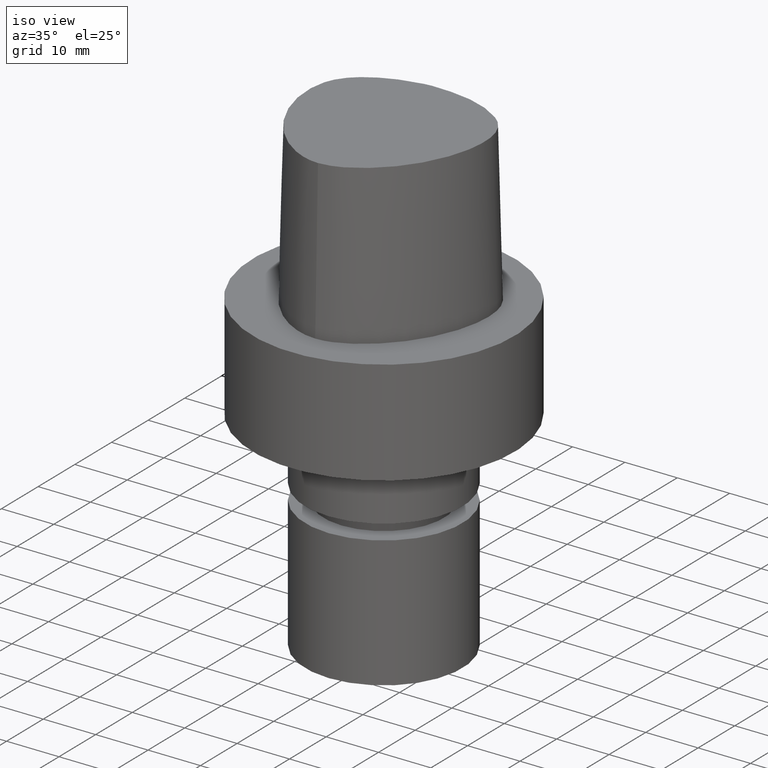
[diagram: clean part render]
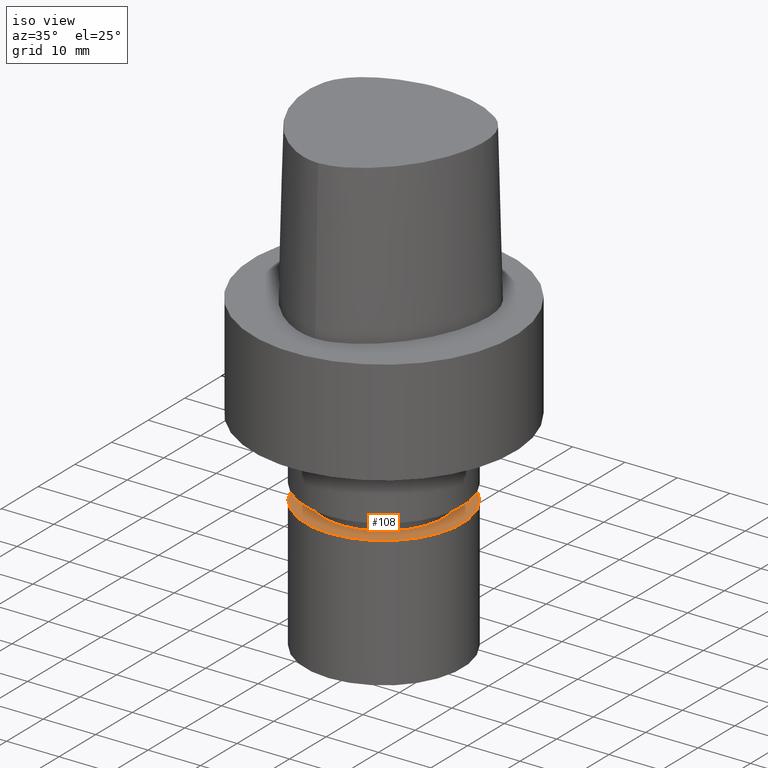
[diagram: same view with one face highlighted and labeled with its STEP entity id]
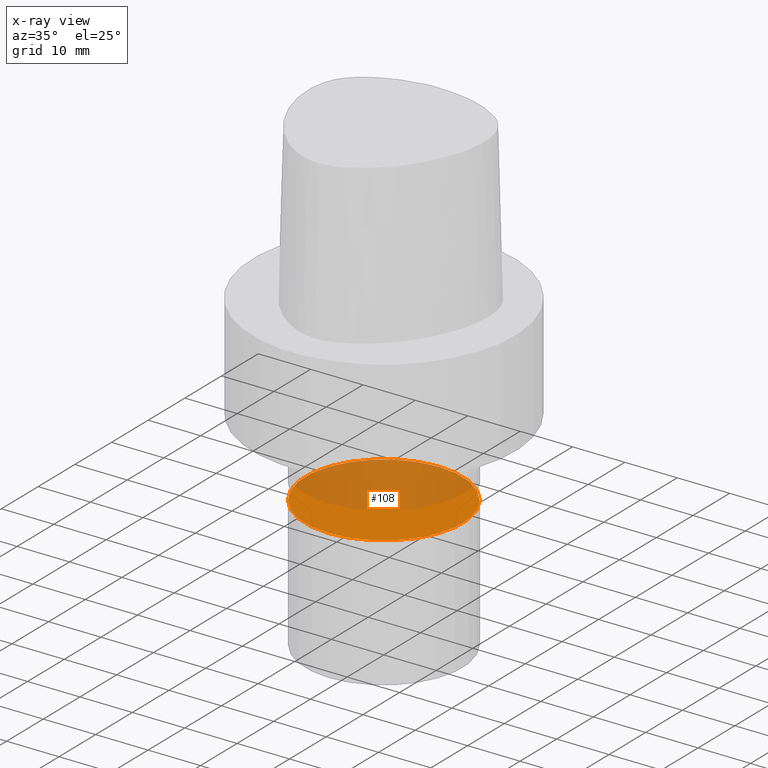
[diagram: x-ray of the same camera — body ghosted, the highlighted face saturated]
A machine part, iso view. The second image highlights one B-rep face of the part: STEP entity #108.
The next image is the same camera in x-ray: the body ghosted, the highlighted face saturated — about 55% of this face is hidden behind the body in this view.
In plain terms, the highlighted planar face has unit normal (-0, -0, 1).
Its self-contained STEP definition (entity closure, byte-faithful):
#108=ADVANCED_FACE('Unnamed[1]',(#230),#231,.T.);
#137=EDGE_CURVE('Unnamed[1]',#273,#273,#274,.T.);
#230=FACE_OUTER_BOUND('',#817,.T.);
#231=PLANE('',#818);
#273=VERTEX_POINT('',#921);
#274=CIRCLE('',#922,15.0000000000001);
#817=EDGE_LOOP('',(#1005));
#818=AXIS2_PLACEMENT_3D('',#1006,#1007,#1008);
#921=CARTESIAN_POINT('',(2.14313189850787E-015,15.0000000000001,-35.0));
#922=AXIS2_PLACEMENT_3D('',#1051,#1052,#1053);
#1005=ORIENTED_EDGE('',*,*,#137,.F.);
#1006=CARTESIAN_POINT('',(2.14313189850787E-015,7.50000000000003,-35.0));
#1007=DIRECTION('',(-6.12323399573677E-017,-1.22464679914735E-016,1.0));
#1008=DIRECTION('',(1.23259516440783E-032,-1.0,-1.22464679914735E-016));
#1051=CARTESIAN_POINT('',(2.14313189850787E-015,4.28626379701574E-015,-35.0));
#1052=DIRECTION('',(6.12323399573676E-017,1.22464679914735E-016,-1.0));
#1053=DIRECTION('',(-1.23259516440783E-032,1.0,1.22464679914735E-016));